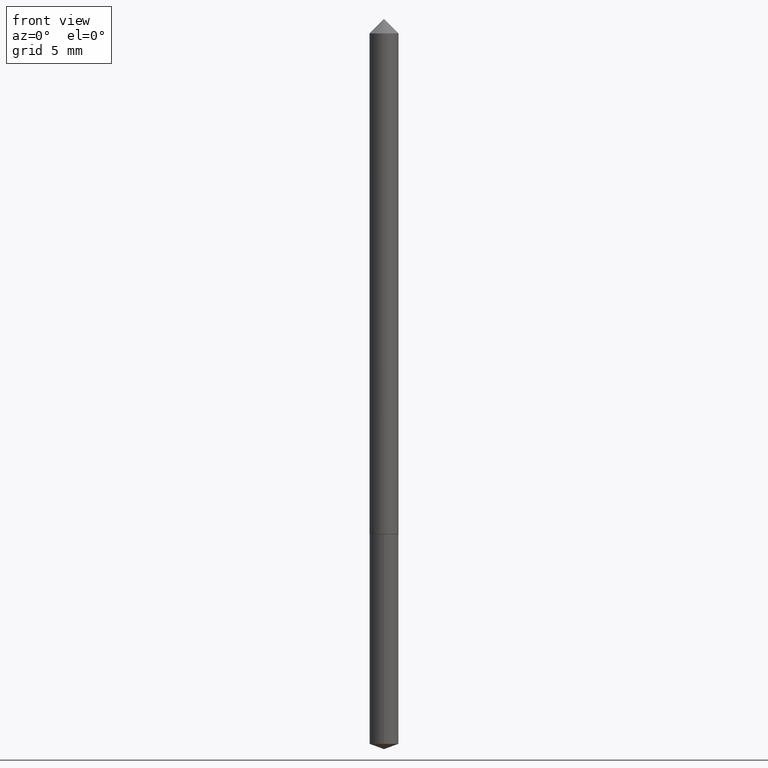
[diagram: clean part render]
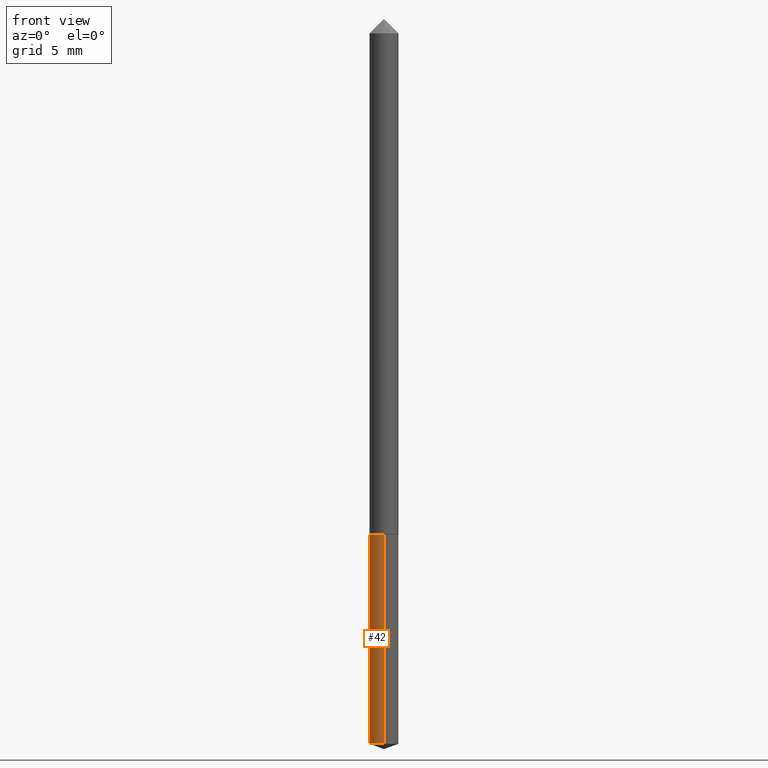
[diagram: same view with one face highlighted and labeled with its STEP entity id]
A machine part, front view. The second image highlights one B-rep face of the part: STEP entity #42.
In plain terms, the highlighted cylindrical surface (edge-blend (fillet) strip) has radius 0.7556 mm, axis along (-0, 0, 1).
Its self-contained STEP definition (entity closure, byte-faithful):
#25 = DIRECTION ( 'NONE',  ( -6.982962677686265922E-15, -1.000000000000000000, 4.591341165822291216E-15 ) ) ;
#42 = ADVANCED_FACE ( 'NONE', ( #254 ), #252, .T. ) ;
#44 = DIRECTION ( 'NONE',  ( -2.445459552101217247E-29, 3.491494591218027885E-15, 1.000000000000000000 ) ) ;
#54 = CARTESIAN_POINT ( 'NONE',  ( -2.077431396611299340E-16, -0.02975000000000519590, -1.489171885530580886 ) ) ;
#69 = CARTESIAN_POINT ( 'NONE',  ( 2.113864638886661574E-16, 0.02974999999999479450, -1.489171885530580886 ) ) ;
#70 = CIRCLE ( 'NONE', #264, 0.02974999999999999867 ) ;
#83 = CARTESIAN_POINT ( 'NONE',  ( -2.077431396611405097E-16, -0.02975000000000370057, -1.059499999999999886 ) ) ;
#94 = DIRECTION ( 'NONE',  ( -2.445459552101217247E-29, 3.491494591218027885E-15, 1.000000000000000000 ) ) ;
#124 = VERTEX_POINT ( 'NONE', #69 ) ;
#132 = DIRECTION ( 'NONE',  ( -2.445459552101217247E-29, 3.491494591218027885E-15, 1.000000000000000000 ) ) ;
#133 = EDGE_CURVE ( 'NONE', #124, #248, #186, .T. ) ;
#147 = LINE ( 'NONE', #344, #330 ) ;
#159 = DIRECTION ( 'NONE',  ( -6.982962677686265922E-15, -1.000000000000000000, 0.000000000000000000 ) ) ;
#167 = EDGE_CURVE ( 'NONE', #243, #322, #70, .T. ) ;
#182 = ORIENTED_EDGE ( 'NONE', *, *, #240, .T. ) ;
#184 = CARTESIAN_POINT ( 'NONE',  ( -2.077431396611405097E-16, -0.02975000000000370057, -1.059499999999999886 ) ) ;
#186 = CIRCLE ( 'NONE', #194, 0.02974999999999999867 ) ;
#188 = EDGE_LOOP ( 'NONE', ( #345, #189, #182, #314 ) ) ;
#189 = ORIENTED_EDGE ( 'NONE', *, *, #133, .T. ) ;
#194 = AXIS2_PLACEMENT_3D ( 'NONE', #195, #44, #159 ) ;
#195 = CARTESIAN_POINT ( 'NONE',  ( 3.641719416893252327E-29, -5.199421542832787783E-15, -1.489171885530580886 ) ) ;
#233 = DIRECTION ( 'NONE',  ( -2.445459552101217247E-29, 3.491494591218027885E-15, 1.000000000000000000 ) ) ;
#235 = VECTOR ( 'NONE', #233, 39.37007874015748143 ) ;
#240 = EDGE_CURVE ( 'NONE', #248, #322, #263, .T. ) ;
#243 = VERTEX_POINT ( 'NONE', #256 ) ;
#248 = VERTEX_POINT ( 'NONE', #54 ) ;
#250 = DIRECTION ( 'NONE',  ( -6.982962677686265922E-15, -1.000000000000000000, 4.591341165822291216E-15 ) ) ;
#252 = CYLINDRICAL_SURFACE ( 'NONE', #279, 0.02974999999999999867 ) ;
#254 = FACE_OUTER_BOUND ( 'NONE', #188, .T. ) ;
#256 = CARTESIAN_POINT ( 'NONE',  ( 2.113864638886662806E-16, 0.02974999999999630024, -1.059500000000000330 ) ) ;
#259 = CARTESIAN_POINT ( 'NONE',  ( 2.590974200153152507E-29, -3.699224478504313579E-15, -1.059500000000000108 ) ) ;
#263 = LINE ( 'NONE', #83, #235 ) ;
#264 = AXIS2_PLACEMENT_3D ( 'NONE', #259, #362, #25 ) ;
#278 = CARTESIAN_POINT ( 'NONE',  ( 2.590974200153152507E-29, -3.699224478504313579E-15, -1.059500000000000108 ) ) ;
#279 = AXIS2_PLACEMENT_3D ( 'NONE', #278, #132, #250 ) ;
#314 = ORIENTED_EDGE ( 'NONE', *, *, #167, .F. ) ;
#322 = VERTEX_POINT ( 'NONE', #184 ) ;
#330 = VECTOR ( 'NONE', #94, 39.37007874015748143 ) ;
#344 = CARTESIAN_POINT ( 'NONE',  ( 2.113864638886556803E-16, 0.02974999999999630024, -1.059500000000000330 ) ) ;
#345 = ORIENTED_EDGE ( 'NONE', *, *, #357, .F. ) ;
#357 = EDGE_CURVE ( 'NONE', #124, #243, #147, .T. ) ;
#362 = DIRECTION ( 'NONE',  ( -2.445459552101217247E-29, 3.491494591218027885E-15, 1.000000000000000000 ) ) ;